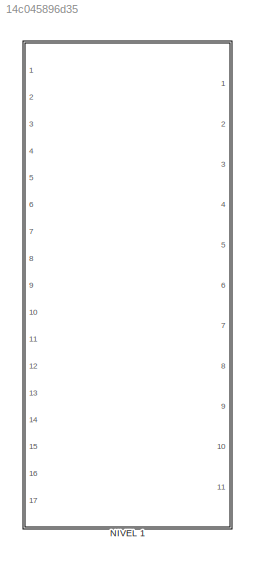
MODEL slx_14c045896d35
KIND model
CONFIG AbsTol = auto
CONFIG EnableMultiTasking = off
CONFIG FixedStep = auto
CONFIG MaxStep = auto
CONFIG MinStep = auto
CONFIG RelTol = 1e-3
CONFIG SampleTimeConstraint = Unconstrained
CONFIG SolverName = VariableStepAuto
CONFIG StartTime = 0.0
CONFIG StopTime = 10.0
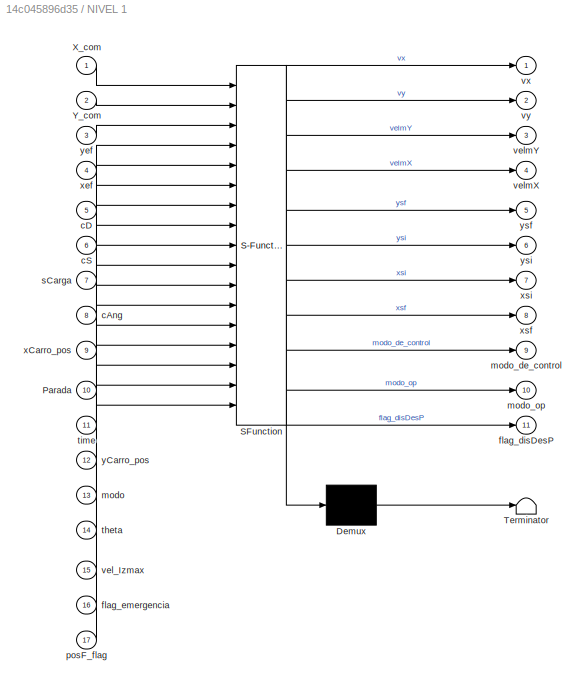
BLOCK [SubSystem] NIVEL 1
  ErrorFcn = Stateflow.Translate.translate
  PermitHierarchicalResolution = ExplicitOnly
  PortSchema = {"entries":[{"content":{"sides":[{"content":{"connectorIds":["In13","In1","In2","In5","In6","In10","In7","In14","In3","In4","In9","In12","In8","In15","In17","In16","In11"]},"type":"ConnectorPlacement.EquallySpacedRectSide","uuid":"1e4dd542-1771-4859-b91f-fc1cb250280a"},{"content":{"connectorIds":["Out1","Out2","Out9","Out7","Out6","Out8","Out5","Out4","Out3","Out10","Out11"],"side":"RIGHT"},"type"...<+560ch>
  Ports = [17, 11]
  RequestExecContextInheritance = off
  SFBlockType = Chart
  TreatAsAtomicUnit = on
BLOCK [Demux] NIVEL 1/ Demux 
  Outputs = 1
  Ports = [1, 1]
BLOCK [S-Function] NIVEL 1/ SFunction 
  EnableBusSupport = on
  FunctionName = sf_sfun
  PortCounts = [17 12]
  Ports = [17, 12]
  SFcnIsStateOwnerBlock = off
  SFunctionDeploymentMode = off
  Tag = Stateflow S-Function 1
BLOCK [Terminator] NIVEL 1/ Terminator 
BLOCK [Inport] NIVEL 1/Parada
  Port = 10
BLOCK [Inport] NIVEL 1/X_com
BLOCK [Inport] NIVEL 1/Y_com
  Port = 2
BLOCK [Inport] NIVEL 1/cAng
  Port = 8
BLOCK [Inport] NIVEL 1/cD
  Port = 5
BLOCK [Inport] NIVEL 1/cS
  Port = 6
BLOCK [Outport] NIVEL 1/flag_disDesP
  Port = 11
BLOCK [Inport] NIVEL 1/flag_emergencia
  Port = 16
BLOCK [Inport] NIVEL 1/modo
  Port = 13
BLOCK [Outport] NIVEL 1/modo_de_control
  Port = 9
BLOCK [Outport] NIVEL 1/modo_op
  Port = 10
BLOCK [Inport] NIVEL 1/posF_flag
  Port = 17
BLOCK [Inport] NIVEL 1/sCarga
  Port = 7
BLOCK [Inport] NIVEL 1/theta
  Port = 14
BLOCK [Inport] NIVEL 1/time
  Port = 11
BLOCK [Inport] NIVEL 1/vel_Izmax
  Port = 15
BLOCK [Outport] NIVEL 1/velmX
  Port = 4
BLOCK [Outport] NIVEL 1/velmY
  Port = 3
BLOCK [Outport] NIVEL 1/vx
BLOCK [Outport] NIVEL 1/vy
  Port = 2
BLOCK [Inport] NIVEL 1/xCarro_pos
  Port = 9
BLOCK [Inport] NIVEL 1/xef
  Port = 4
BLOCK [Outport] NIVEL 1/xsf
  Port = 8
BLOCK [Outport] NIVEL 1/xsi
  Port = 7
BLOCK [Inport] NIVEL 1/yCarro_pos
  Port = 12
BLOCK [Inport] NIVEL 1/yef
  Port = 3
BLOCK [Outport] NIVEL 1/ysf
  Port = 5
BLOCK [Outport] NIVEL 1/ysi
  Port = 6
CHART NIVEL 1 states=26 transitions=26
  STATE_LABEL 'Nivel1'
  STATE_LABEL 'Spreder'
  STATE_LABEL 'Descargado\nen:\nScargado=0'
  STATE_LABEL 'Cargado\nen:\nScargado=1'
  STATE_LABEL '[sCarga==1]'
  STATE_LABEL '[sCarga==0]'
  STATE_LABEL 'controlAngulo'
  STATE_LABEL 'Desactivado'
  STATE_LABEL 'Activado'
  STATE_LABEL '[cAng==0]'
  STATE_LABEL '[cAng==1]'
  STATE_LABEL 'modoOperacion'
  STATE_LABEL 'Automatico'
  STATE_LABEL 'CicloSimple'
  STATE_LABEL 'descaragBarco\nen :\nxsi=xCarro_pos;\nysi=yCarro_pos;\nxsf=xef;\nysf=yef;\nvelmX=4;\nvelmY=vel_Izmax\nmodo_de_control=1\ndu:\nerror=Calc_error(xsf,xCarro_pos,ysf,yCarro_pos);'
  STATE_LABEL 'cargaBarco\nen :\nxsi=xCarro_pos;\nysi=yCarro_pos;\nxsf=xef;\nysf=yef;\nvelmX=4;\nvelmY=vel_Izmax;\nmodo_de_control=1;\ndu:\nerror=Calc_error(xsf,xCarro_pos,ysf,yCarro_pos);\n'
  STATE_LABEL 'standby\nen :\nmodo_op = 2;'
  STATE_LABEL 'idaBarco\nen :\nxsi=xCarro_pos;\nysi=yCarro_pos;\nxsf=xef;\nysf=yef;\nvelmX=4;\nvelmY=vel_Izmax;\nmodo_de_control=1;\ndu:\nerror=Calc_error(xsf,xCarro_pos,ysf,yCarro_pos);'
  STATE_LABEL 'vueltaMuelle\nen :\nxsi=xCarro_pos\nysi=yCarro_pos\nxsf=xef\nysf=yef\nvelmX=4\nvelmY=vel_Izmax\nmodo_de_control=1\ndu:\nerror=Calc_error(xsf,xCarro_pos,ysf,yCarro_pos);'
  STATE_LABEL '[Scargado==1 && xCarro_pos<30 ]'
  STATE_LABEL '[Scargado==1 && xCarro_pos>30]'
  STATE_LABEL '[Scargado==0 && xCarro_pos>30]'
  STATE_LABEL '[Scargado==0 && xCarro_pos<30]'
  STATE_LABEL 'standby\nen:\nerror=inf;\nmodo_op = 1;\n'
  STATE_LABEL 'CicloDoble'
  STATE_LABEL 'cargaBarco\nen :\nxsi=xCarro_pos;\nysi=yCarro_pos;\nxsf=xef;\nysf=yef;\nvelmX=4;\nvelmY=vel_Izmax;\nerror=inf;\nmodo_de_control=1;\nflagD_cB=1;\ndu :\nerror=Calc_error(xsf,xCarro_pos,ysf,yCarro_pos);\n'
  STATE_LABEL 'standby\nen:\nmodo_op = 3;\nflagcD=1;\ncont=cont+1;\nif(cont==2)\n    flagcD=0;\n    cont=0;\nend'
  STATE_LABEL 'descaragBarco\nen :\nxsi=xCarro_pos;\nysi=yCarro_pos;\nxsf=xef;\nysf=yef;\nvelmX=4;\nvelmY=vel_Izmax;\nerror=inf;\nmodo_de_control=1;\nflagD_cB=0;\ndu:\nerror=Calc_error(xsf,xCarro_pos,ysf,yCarro_pos);'
  STATE_LABEL '[xCarro_pos<30]'
  STATE_LABEL '[xCarro_pos>30]'
  STATE_LABEL '[cS==115 && posF_flag]'
  STATE_LABEL '[Parada==112 ]'
  STATE_LABEL '[(cD==100 && posF_flag)|| flagcD]'
  STATE_LABEL '[Parada==112 ]'
  STATE_LABEL 'modoManual\nen :\n modo_op = 0;\n xsi=xCarro_pos;\n ysi=yCarro_pos;\n vx=0;\n vy=0;\n time_a=time;\n vx_a=0;\n vy_a=0;\n error=0;\n delta_t=0;\n modo_de_control=0;\n dist_desp=yCarro_pos-20;\n if(dist_desp>2)\n     flag_disDesP=1;\n else\n     flag_disDesP=0;\n end\ndu :\ndelta_t=time-time_a;\n[vx,vy]=Calc_v(delta_t,vx_a,vy_a,X_com,Y_com);\ntime_a=time;\nvx_a=vx;\nvy_a=vy;'
  STATE_LABEL 'transicion\nen:\ntime_a=time;\ndelta_t=0;\ndu:\ndelta_t=time-time_a;\n[vx,vy]=Calc_v1(delta_t,vx,vy);\ntime_a=time;\nex:\nvx = 0;\nvy = 0;\n'
  STATE_LABEL 'transicion1\nen:\ntime_a=time\ndelta_t=0\ndu:\ndelta_t=time-time_a;\n[vx,vy]=Calc_v1(delta_t,vx,vy);\ntime_a=time;\nex:\nvx = 0\nvy = 0\n'
  STATE_LABEL '[abs(vx)<0.1 && abs(vy)<0.01]'
  STATE_LABEL '[modo==97 && (dist_desp>2 || xCarro_pos>30)   ]'
  STATE_LABEL '[error<2 && theta <0.05 || modo==109]'
CHART  states=0 transitions=0
